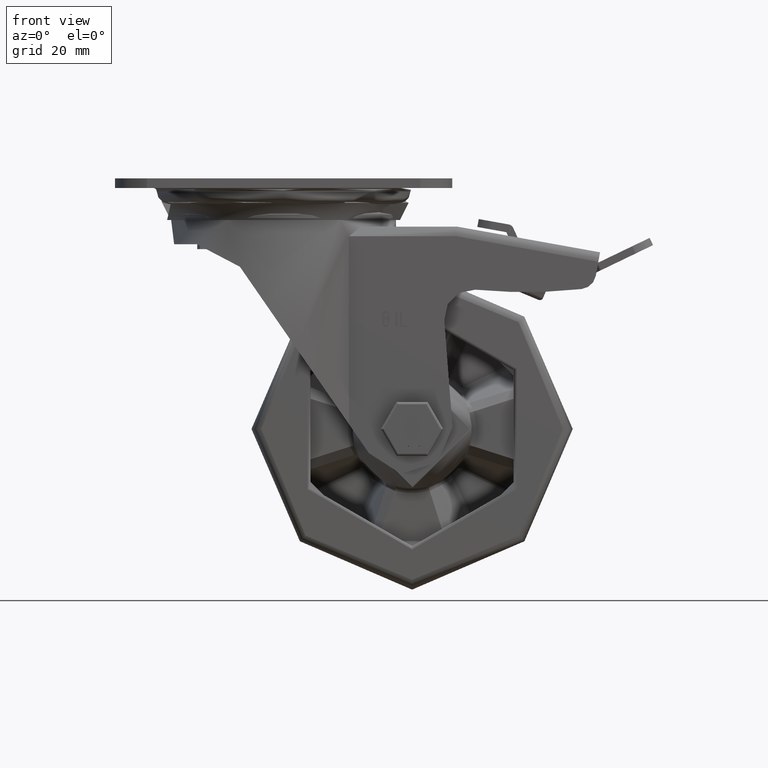
[diagram: clean part render]
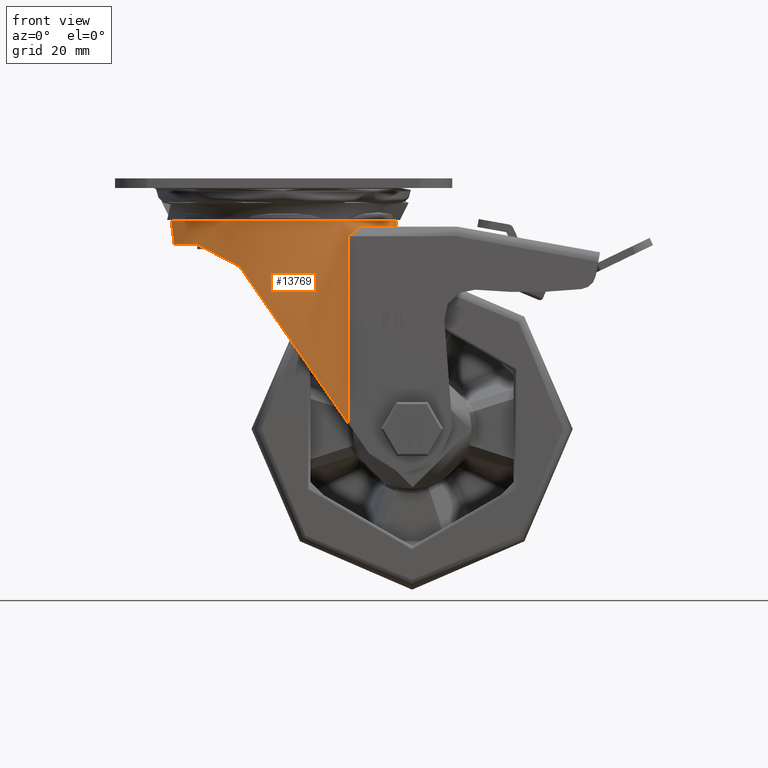
[diagram: same view with one face highlighted and labeled with its STEP entity id]
A machine part, front view. The second image highlights one B-rep face of the part: STEP entity #13769.
In plain terms, the highlighted cylindrical surface (bore or boss wall) has radius 35 mm, axis along (0, 0, -1).
Its self-contained STEP definition (entity closure, byte-faithful):
#549=B_SPLINE_CURVE_WITH_KNOTS('',3,(#21374,#21375,#21376,#21377,#21378,
#21379,#21380,#21381,#21382,#21383,#21384,#21385),.UNSPECIFIED.,.F.,.F.,
(4,2,2,2,2,4),(-1.71994677694923,-1.55763954515558,-1.39533231336193,-1.26297524422116,
-1.19679670965078,-1.1306181750804),.UNSPECIFIED.);
#550=B_SPLINE_CURVE_WITH_KNOTS('',3,(#21391,#21392,#21393,#21394,#21395,
#21396,#21397,#21398,#21399,#21400,#21401,#21402,#21403,#21404),
 .UNSPECIFIED.,.F.,.F.,(4,2,2,2,2,2,4),(-9.22056442852573,-9.01003638390805,
-8.74770908676789,-8.48538178962772,-8.01664356781968,-7.54790534601164,
-7.42021594716476),.UNSPECIFIED.);
#551=B_SPLINE_CURVE_WITH_KNOTS('',3,(#21408,#21409,#21410,#21411,#21412,
#21413,#21414,#21415,#21416,#21417,#21418,#21419,#21420,#21421),
 .UNSPECIFIED.,.F.,.F.,(4,2,2,2,2,2,4),(-2.74735216048336,-2.61966276163649,
-2.15092453982845,-1.68218631802041,-1.41985902088024,-1.15753172374007,
-0.947003679122399),.UNSPECIFIED.);
#552=B_SPLINE_CURVE_WITH_KNOTS('',3,(#21426,#21427,#21428,#21429,#21430,
#21431,#21432,#21433,#21434,#21435,#21436,#21437),.UNSPECIFIED.,.F.,.F.,
(4,2,2,2,2,4),(1.1306181750804,1.187761652528,1.2449051299756,1.35919208487081,
1.53873481692993,1.71827754898904),.UNSPECIFIED.);
#1389=ELLIPSE('',#15039,61.4987344561778,35.);
#1390=ELLIPSE('',#15041,61.4987344561778,35.);
#1666=LINE('',#21370,#2609);
#1667=LINE('',#21387,#2610);
#1668=LINE('',#21425,#2611);
#2609=VECTOR('',#17177,35.);
#2610=VECTOR('',#17180,1000.);
#2611=VECTOR('',#17187,1000.);
#3343=CYLINDRICAL_SURFACE('',#15036,35.);
#3677=FACE_OUTER_BOUND('',#4540,.T.);
#4540=EDGE_LOOP('',(#10230,#10231,#10232,#10233,#10234,#10235,#10236,#10237,
#10238,#10239,#10240,#10241,#10242,#10243));
#5419=CIRCLE('',#15009,35.);
#5439=CIRCLE('',#15037,35.);
#5440=CIRCLE('',#15038,35.);
#5441=CIRCLE('',#15040,35.);
#6211=VERTEX_POINT('',#21311);
#6232=VERTEX_POINT('',#21367);
#6233=VERTEX_POINT('',#21368);
#6234=VERTEX_POINT('',#21371);
#6235=VERTEX_POINT('',#21373);
#6236=VERTEX_POINT('',#21386);
#6237=VERTEX_POINT('',#21388);
#6238=VERTEX_POINT('',#21390);
#6239=VERTEX_POINT('',#21405);
#6240=VERTEX_POINT('',#21407);
#6241=VERTEX_POINT('',#21422);
#6242=VERTEX_POINT('',#21424);
#7663=EDGE_CURVE('',#6211,#6211,#5419,.T.);
#7690=EDGE_CURVE('',#6232,#6233,#5439,.T.);
#7691=EDGE_CURVE('',#6233,#6211,#1666,.T.);
#7692=EDGE_CURVE('',#6233,#6234,#5440,.T.);
#7693=EDGE_CURVE('',#6235,#6234,#549,.F.);
#7694=EDGE_CURVE('',#6235,#6236,#1667,.T.);
#7695=EDGE_CURVE('',#6236,#6237,#1389,.T.);
#7696=EDGE_CURVE('',#6237,#6238,#550,.T.);
#7697=EDGE_CURVE('',#6238,#6239,#5441,.T.);
#7698=EDGE_CURVE('',#6239,#6240,#551,.T.);
#7699=EDGE_CURVE('',#6240,#6241,#1390,.T.);
#7700=EDGE_CURVE('',#6241,#6242,#1668,.T.);
#7701=EDGE_CURVE('',#6232,#6242,#552,.F.);
#10230=ORIENTED_EDGE('',*,*,#7690,.T.);
#10231=ORIENTED_EDGE('',*,*,#7691,.T.);
#10232=ORIENTED_EDGE('',*,*,#7663,.F.);
#10233=ORIENTED_EDGE('',*,*,#7691,.F.);
#10234=ORIENTED_EDGE('',*,*,#7692,.T.);
#10235=ORIENTED_EDGE('',*,*,#7693,.F.);
#10236=ORIENTED_EDGE('',*,*,#7694,.T.);
#10237=ORIENTED_EDGE('',*,*,#7695,.T.);
#10238=ORIENTED_EDGE('',*,*,#7696,.T.);
#10239=ORIENTED_EDGE('',*,*,#7697,.T.);
#10240=ORIENTED_EDGE('',*,*,#7698,.T.);
#10241=ORIENTED_EDGE('',*,*,#7699,.T.);
#10242=ORIENTED_EDGE('',*,*,#7700,.T.);
#10243=ORIENTED_EDGE('',*,*,#7701,.F.);
#13769=ADVANCED_FACE('',(#3677),#3343,.T.);
#15009=AXIS2_PLACEMENT_3D('',#21312,#17112,#17113);
#15036=AXIS2_PLACEMENT_3D('',#21366,#17173,#17174);
#15037=AXIS2_PLACEMENT_3D('',#21369,#17175,#17176);
#15038=AXIS2_PLACEMENT_3D('',#21372,#17178,#17179);
#15039=AXIS2_PLACEMENT_3D('',#21389,#17181,#17182);
#15040=AXIS2_PLACEMENT_3D('',#21406,#17183,#17184);
#15041=AXIS2_PLACEMENT_3D('',#21423,#17185,#17186);
#17112=DIRECTION('center_axis',(-2.8546082516074E-16,0.,1.));
#17113=DIRECTION('ref_axis',(-1.,0.,-2.8546082516074E-16));
#17173=DIRECTION('center_axis',(2.8546082516074E-16,0.,-1.));
#17174=DIRECTION('ref_axis',(-1.,0.,-2.8546082516074E-16));
#17175=DIRECTION('center_axis',(-6.19544098563145E-16,0.,1.));
#17176=DIRECTION('ref_axis',(-1.,0.,-6.19544098563145E-16));
#17177=DIRECTION('',(-2.8546082516074E-16,0.,1.));
#17178=DIRECTION('center_axis',(-6.19544098563145E-16,0.,1.));
#17179=DIRECTION('ref_axis',(-1.,0.,-6.19544098563145E-16));
#17180=DIRECTION('',(2.8546082516074E-16,0.,-1.));
#17181=DIRECTION('center_axis',(0.822256275360899,0.,0.569117402325409));
#17182=DIRECTION('ref_axis',(-0.569117402325409,0.,0.822256275360899));
#17183=DIRECTION('center_axis',(-8.40281598203873E-16,0.,1.));
#17184=DIRECTION('ref_axis',(-1.,0.,-8.40281598203873E-16));
#17185=DIRECTION('center_axis',(0.822256275360899,0.,0.569117402325409));
#17186=DIRECTION('ref_axis',(-0.569117402325409,0.,0.822256275360899));
#17187=DIRECTION('',(-2.8546082516074E-16,0.,1.));
#21311=CARTESIAN_POINT('',(35.,4.28626379701574E-15,-13.));
#21312=CARTESIAN_POINT('Origin',(5.18221190291806E-15,0.,-13.));
#21366=CARTESIAN_POINT('Origin',(4.61129025259658E-15,0.,-11.));
#21367=CARTESIAN_POINT('',(23.9739441894737,-25.5,-15.));
#21368=CARTESIAN_POINT('',(35.,-4.28626379701574E-15,-15.));
#21369=CARTESIAN_POINT('Origin',(5.75313355323955E-15,0.,-15.));
#21370=CARTESIAN_POINT('',(35.,-4.28626379701574E-15,-11.));
#21371=CARTESIAN_POINT('',(23.9739441894737,25.5,-15.));
#21372=CARTESIAN_POINT('Origin',(5.75313355323955E-15,0.,-15.));
#21373=CARTESIAN_POINT('',(20.31624965391,28.5,-18.));
#21374=CARTESIAN_POINT('Ctrl Pts',(23.9739441894737,25.5,-15.));
#21375=CARTESIAN_POINT('Ctrl Pts',(23.5797694836891,25.8705851920542,-15.));
#21376=CARTESIAN_POINT('Ctrl Pts',(23.1427788046512,26.2627361258062,-15.0716874299397));
#21377=CARTESIAN_POINT('Ctrl Pts',(22.2826280449669,26.9963702556069,-15.36985609749));
#21378=CARTESIAN_POINT('Ctrl Pts',(21.8594703062695,27.3381802004437,-15.5955395133244));
#21379=CARTESIAN_POINT('Ctrl Pts',(21.1989516380039,27.8522133178577,-16.1095726307385));
#21380=CARTESIAN_POINT('Ctrl Pts',(20.8986979239418,28.0770276330337,-16.4137268563912));
#21381=CARTESIAN_POINT('Ctrl Pts',(20.5671393389972,28.3198083112057,-16.9569205456067));
#21382=CARTESIAN_POINT('Ctrl Pts',(20.4761112406385,28.385466590864,-17.1523699472305));
#21383=CARTESIAN_POINT('Ctrl Pts',(20.3506773061062,28.4755335696254,-17.5636217668536));
#21384=CARTESIAN_POINT('Ctrl Pts',(20.3162496539101,28.5,-17.7794048847654));
#21385=CARTESIAN_POINT('Ctrl Pts',(20.3162496539101,28.5,-18.));
#21386=CARTESIAN_POINT('',(20.3162496539101,28.5,-76.5190552563851));
#21387=CARTESIAN_POINT('',(20.3162496539101,28.5,-55.));
#21388=CARTESIAN_POINT('',(-13.6118555219549,32.2446490018022,-27.5));
#21389=CARTESIAN_POINT('Origin',(1.49353521201319E-14,0.,-47.1663000929178));
#21390=CARTESIAN_POINT('',(-26.9700044901181,22.3073722747214,-20.5));
#21391=CARTESIAN_POINT('Ctrl Pts',(-13.6118555219549,32.2446490018023,-27.5));
#21392=CARTESIAN_POINT('Ctrl Pts',(-14.0151626709682,32.0743956787459,-26.9173050537215));
#21393=CARTESIAN_POINT('Ctrl Pts',(-14.4481503861946,31.882532934239,-26.3738957281154));
#21394=CARTESIAN_POINT('Ctrl Pts',(-15.4540814577447,31.4094204236454,-25.2564769511823));
#21395=CARTESIAN_POINT('Ctrl Pts',(-16.1070780696748,31.083294674447,-24.6340624493462));
#21396=CARTESIAN_POINT('Ctrl Pts',(-17.4766834753676,30.3343816124798,-23.5331402592252));
#21397=CARTESIAN_POINT('Ctrl Pts',(-18.1923848887644,29.9107967661939,-23.0540466811059));
#21398=CARTESIAN_POINT('Ctrl Pts',(-20.0390682399257,28.7299655217377,-21.9892429509682));
#21399=CARTESIAN_POINT('Ctrl Pts',(-21.3496992857699,27.7837412927361,-21.4467313966615));
#21400=CARTESIAN_POINT('Ctrl Pts',(-23.8791810624934,25.6423607777173,-20.7427928004187));
#21401=CARTESIAN_POINT('Ctrl Pts',(-25.0957963875638,24.4466649253606,-20.5749908848234));
#21402=CARTESIAN_POINT('Ctrl Pts',(-26.4174239652492,22.9630281265597,-20.5069286385453));
#21403=CARTESIAN_POINT('Ctrl Pts',(-26.6961194774633,22.6385040606668,-20.4999999999999));
#21404=CARTESIAN_POINT('Ctrl Pts',(-26.9700044901181,22.3073722747214,-20.4999999999999));
#21405=CARTESIAN_POINT('',(-26.9700044901181,-22.3073722747214,-20.5));
#21406=CARTESIAN_POINT('Origin',(7.32316809162361E-15,0.,-20.5));
#21407=CARTESIAN_POINT('',(-13.6118555219549,-32.2446490018022,-27.5));
#21408=CARTESIAN_POINT('Ctrl Pts',(-26.9700044901181,-22.3073722747214,
-20.4999999999999));
#21409=CARTESIAN_POINT('Ctrl Pts',(-26.6961194774633,-22.6385040606668,
-20.4999999999999));
#21410=CARTESIAN_POINT('Ctrl Pts',(-26.4174239652493,-22.9630281265597,
-20.5069286385453));
#21411=CARTESIAN_POINT('Ctrl Pts',(-25.0957963875638,-24.4466649253606,
-20.5749908848234));
#21412=CARTESIAN_POINT('Ctrl Pts',(-23.8791810624933,-25.6423607777173,
-20.7427928004187));
#21413=CARTESIAN_POINT('Ctrl Pts',(-21.3496992857698,-27.7837412927361,
-21.4467313966615));
#21414=CARTESIAN_POINT('Ctrl Pts',(-20.0390682399257,-28.7299655217377,
-21.9892429509682));
#21415=CARTESIAN_POINT('Ctrl Pts',(-18.1923848887644,-29.9107967661939,
-23.0540466811059));
#21416=CARTESIAN_POINT('Ctrl Pts',(-17.4766834753676,-30.3343816124798,
-23.5331402592252));
#21417=CARTESIAN_POINT('Ctrl Pts',(-16.1070780696748,-31.083294674447,-24.6340624493463));
#21418=CARTESIAN_POINT('Ctrl Pts',(-15.4540814577447,-31.4094204236454,
-25.2564769511823));
#21419=CARTESIAN_POINT('Ctrl Pts',(-14.4481503861946,-31.882532934239,-26.3738957281154));
#21420=CARTESIAN_POINT('Ctrl Pts',(-14.0151626709682,-32.0743956787459,
-26.9173050537215));
#21421=CARTESIAN_POINT('Ctrl Pts',(-13.6118555219549,-32.2446490018022,
-27.5));
#21422=CARTESIAN_POINT('',(20.3162496539101,-28.5,-76.5190552563851));
#21423=CARTESIAN_POINT('Origin',(1.49353521201319E-14,0.,-47.1663000929178));
#21424=CARTESIAN_POINT('',(20.31624965391,-28.5,-18.));
#21425=CARTESIAN_POINT('',(20.3162496539101,-28.5,-55.));
#21426=CARTESIAN_POINT('Ctrl Pts',(20.3162496539101,-28.5,-18.));
#21427=CARTESIAN_POINT('Ctrl Pts',(20.3162496539101,-28.5,-17.8095217418413));
#21428=CARTESIAN_POINT('Ctrl Pts',(20.3420763602162,-28.4816352066664,-17.6196979023606));
#21429=CARTESIAN_POINT('Ctrl Pts',(20.4398063738094,-28.4115809150136,-17.2533576699184));
#21430=CARTESIAN_POINT('Ctrl Pts',(20.5116176396968,-28.3599277039255,-17.0768097909568));
#21431=CARTESIAN_POINT('Ctrl Pts',(20.7768336675226,-28.166842479135,-16.5809097701669));
#21432=CARTESIAN_POINT('Ctrl Pts',(21.021286341695,-27.9857234814576,-16.2952259379082));
#21433=CARTESIAN_POINT('Ctrl Pts',(21.651318746626,-27.5037332786573,-15.7207416269494));
#21434=CARTESIAN_POINT('Ctrl Pts',(22.1116551615865,-27.1377179690879,-15.4486937286096));
#21435=CARTESIAN_POINT('Ctrl Pts',(23.0548340250273,-26.3411400456033,-15.0873092963729));
#21436=CARTESIAN_POINT('Ctrl Pts',(23.5379118401873,-25.9099378512391,-15.));
#21437=CARTESIAN_POINT('Ctrl Pts',(23.9739441894737,-25.5,-15.));